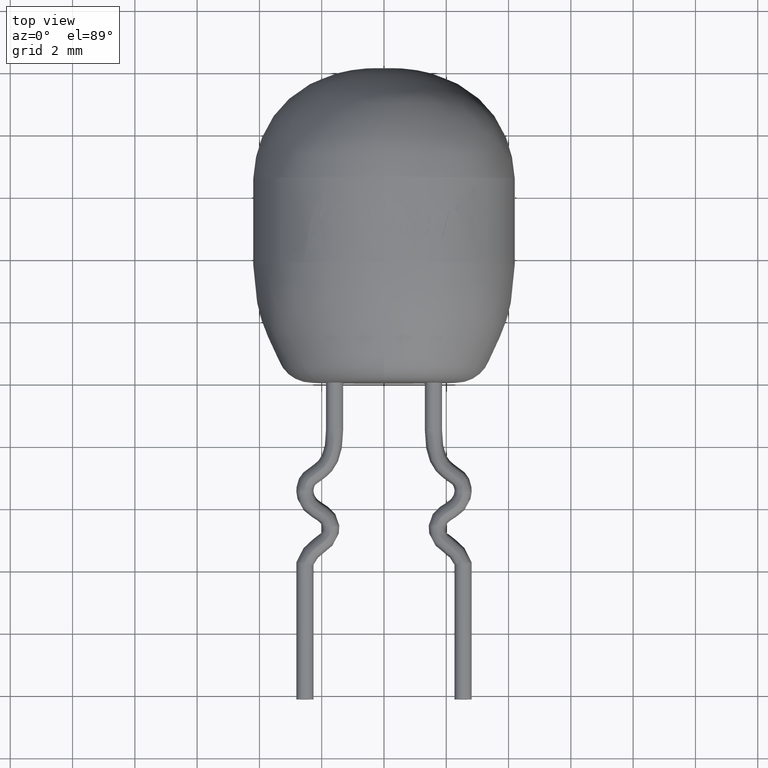
[diagram: clean part render]
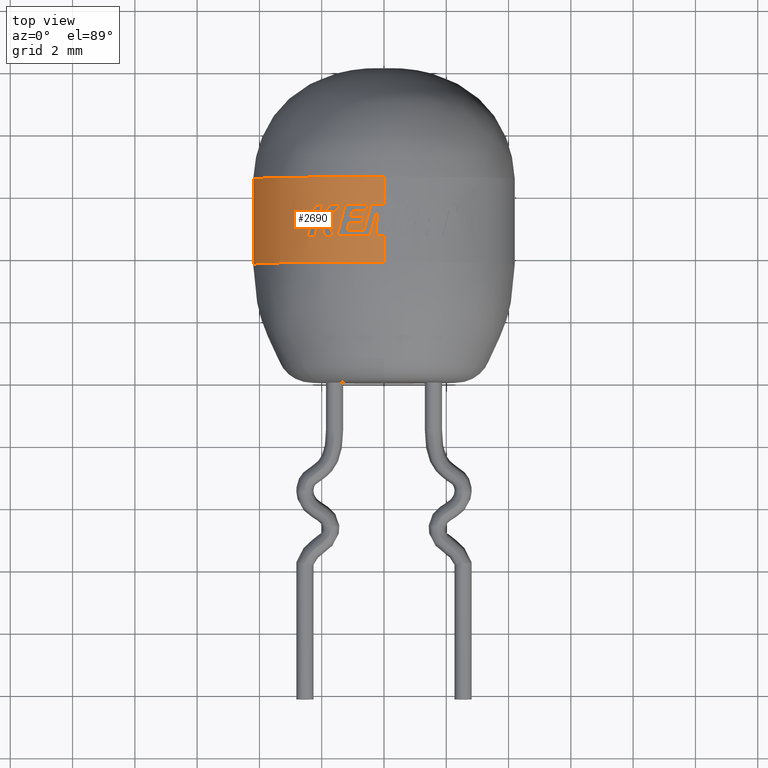
[diagram: same view with one face highlighted and labeled with its STEP entity id]
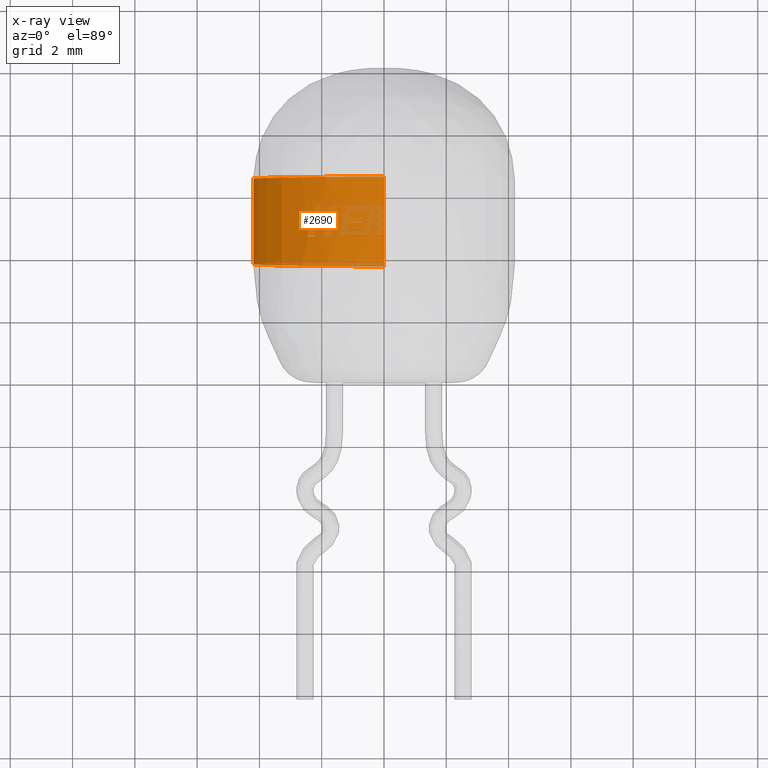
[diagram: x-ray of the same camera — body ghosted, the highlighted face saturated]
A machine part, top view. The second image highlights one B-rep face of the part: STEP entity #2690.
The next image is the same camera in x-ray: the body ghosted, the highlighted face saturated — about 17% of this face is hidden behind the body in this view.
In plain terms, the highlighted cylindrical surface (partial cylindrical patch) has radius 4.2 mm, axis along (-0, -1, -0).
Its self-contained STEP definition (entity closure, byte-faithful):
#1 = VERTEX_POINT ( 'NONE', #2329 ) ;
#3 = CIRCLE ( 'NONE', #3885, 4.200000000000000200 ) ;
#43 = VERTEX_POINT ( 'NONE', #5034 ) ;
#71 = ORIENTED_EDGE ( 'NONE', *, *, #4346, .T. ) ;
#88 = DIRECTION ( 'NONE',  ( -0.0000000000000000000, -1.000000000000000000, -0.0000000000000000000 ) ) ;
#95 = DIRECTION ( 'NONE',  ( -0.2542979737278155400, 0.0000000000000000000, 0.9671259176332353000 ) ) ;
#112 = CARTESIAN_POINT ( 'NONE',  ( -1.754878093605808600, 5.003048467462742900, 3.816558976921661900 ) ) ;
#127 = ORIENTED_EDGE ( 'NONE', *, *, #3571, .F. ) ;
#135 = B_SPLINE_CURVE_WITH_KNOTS ( 'NONE', 3,
 ( #4762, #1668, #768, #3006 ),
 .UNSPECIFIED., .F., .F.,
 ( 4, 4 ),
 ( 0.0000000000000000000, 1.000000000000000000 ),
 .UNSPECIFIED. ) ;
#147 = CARTESIAN_POINT ( 'NONE',  ( -0.2026056292762357700, 5.535606561229161400, 4.195110363147265700 ) ) ;
#154 = CARTESIAN_POINT ( 'NONE',  ( 0.0000000000000000000, 3.803860493999999800, -4.200000000000000200 ) ) ;
#190 = CARTESIAN_POINT ( 'NONE',  ( -0.6373349285369702700, 4.638143343826302900, 4.151361727056169600 ) ) ;
#205 = CARTESIAN_POINT ( 'NONE',  ( -2.043656353274370100, 5.359630677043721600, 3.669489866398929900 ) ) ;
#215 = ORIENTED_EDGE ( 'NONE', *, *, #3795, .F. ) ;
#233 = VERTEX_POINT ( 'NONE', #4449 ) ;
#293 = ORIENTED_EDGE ( 'NONE', *, *, #4642, .F. ) ;
#316 = DIRECTION ( 'NONE',  ( -0.0000000000000000000, -1.000000000000000000, -0.0000000000000000000 ) ) ;
#331 = B_SPLINE_CURVE_WITH_KNOTS ( 'NONE', 3,
 ( #5420, #644, #2857, #147 ),
 .UNSPECIFIED., .F., .F.,
 ( 4, 4 ),
 ( 0.0000000000000000000, 1.000000000000000000 ),
 .UNSPECIFIED. ) ;
#335 = ORIENTED_EDGE ( 'NONE', *, *, #5180, .F. ) ;
#365 = EDGE_LOOP ( 'NONE', ( #2602, #293, #371, #5595, #2349, #2572, #4389, #2562, #5455, #4678, #3379 ) ) ;
#367 = CARTESIAN_POINT ( 'NONE',  ( -2.133381453791007900, 5.003048473628087600, 3.618206504041455500 ) ) ;
#371 = ORIENTED_EDGE ( 'NONE', *, *, #2056, .T. ) ;
#378 = AXIS2_PLACEMENT_3D ( 'NONE', #5670, #2162, #5687 ) ;
#385 = DIRECTION ( 'NONE',  ( -0.4510963353800685500, 0.0000000000000000000, 0.8924752636385351300 ) ) ;
#402 = CARTESIAN_POINT ( 'NONE',  ( -2.302025774724080000, 5.310193731848106500, 3.514257059445960800 ) ) ;
#413 = VERTEX_POINT ( 'NONE', #4680 ) ;
#415 = AXIS2_PLACEMENT_3D ( 'NONE', #5208, #5721, #3463 ) ;
#431 = DIRECTION ( 'NONE',  ( -0.0000000000000000000, -1.000000000000000000, -0.0000000000000000000 ) ) ;
#441 = CARTESIAN_POINT ( 'NONE',  ( -1.188025340779879100, 4.829930339892737100, 4.028473133789631800 ) ) ;
#514 = EDGE_CURVE ( 'NONE', #2338, #5542, #723, .T. ) ;
#521 = CARTESIAN_POINT ( 'NONE',  ( -0.5102994829641494000, 5.646218952581399700, 4.168884075827310900 ) ) ;
#536 = CIRCLE ( 'NONE', #415, 4.200000000000001100 ) ;
#558 = B_SPLINE_CURVE_WITH_KNOTS ( 'NONE', 3,
 ( #2640, #2674, #3554, #3972 ),
 .UNSPECIFIED., .F., .F.,
 ( 4, 4 ),
 ( 0.0000000000000000000, 1.000000000000000000 ),
 .UNSPECIFIED. ) ;
#579 = DIRECTION ( 'NONE',  ( -0.0000000000000000000, -1.000000000000000000, -0.0000000000000000000 ) ) ;
#644 = CARTESIAN_POINT ( 'NONE',  ( -0.3740703957898319200, 4.937297759540953700, 4.184190418391093400 ) ) ;
#650 = VERTEX_POINT ( 'NONE', #5662 ) ;
#681 = CARTESIAN_POINT ( 'NONE',  ( -1.827579657790420900, 5.502924579147035400, 3.784223398404107400 ) ) ;
#716 = EDGE_CURVE ( 'NONE', #4029, #3697, #4999, .T. ) ;
#719 = VERTEX_POINT ( 'NONE', #3482 ) ;
#721 = DIRECTION ( 'NONE',  ( -0.2665202209951475500, 0.0000000000000000000, 0.9638293271117546200 ) ) ;
#723 = B_SPLINE_CURVE_WITH_KNOTS ( 'NONE', 3,
 ( #1950, #4496, #2803, #1051 ),
 .UNSPECIFIED., .F., .F.,
 ( 4, 4 ),
 ( 0.0000000000000000000, 1.000000000000000000 ),
 .UNSPECIFIED. ) ;
#738 = CARTESIAN_POINT ( 'NONE',  ( -0.2026056292762357700, 5.535606561229161400, 4.195110363147265700 ) ) ;
#739 = CARTESIAN_POINT ( 'NONE',  ( -1.696946932100555700, 5.646218952581399700, 3.841922840145871800 ) ) ;
#762 = CARTESIAN_POINT ( 'NONE',  ( 5.143516556418883900E-016, 10.08714000000000000, 4.200000000000000200 ) ) ;
#768 = CARTESIAN_POINT ( 'NONE',  ( -0.5658175154234239600, 5.102026550333007100, 4.162447289377482200 ) ) ;
#774 = ORIENTED_EDGE ( 'NONE', *, *, #4677, .F. ) ;
#799 = DIRECTION ( 'NONE',  ( -0.0000000000000000000, -1.000000000000000000, -0.0000000000000000000 ) ) ;
#802 = DIRECTION ( 'NONE',  ( -0.0000000000000000000, -1.000000000000000000, -0.0000000000000000000 ) ) ;
#815 = EDGE_CURVE ( 'NONE', #5439, #5587, #3541, .T. ) ;
#829 = ORIENTED_EDGE ( 'NONE', *, *, #4030, .F. ) ;
#839 = VERTEX_POINT ( 'NONE', #4282 ) ;
#846 = CIRCLE ( 'NONE', #2995, 4.200000000000000200 ) ;
#863 = DIRECTION ( 'NONE',  ( -0.0000000000000000000, -1.000000000000000000, -0.0000000000000000000 ) ) ;
#872 = DIRECTION ( 'NONE',  ( -0.0000000000000000000, -1.000000000000000000, -0.0000000000000000000 ) ) ;
#907 = DIRECTION ( 'NONE',  ( -0.0000000000000000000, -1.000000000000000000, -0.0000000000000000000 ) ) ;
#920 = EDGE_CURVE ( 'NONE', #3786, #719, #2659, .T. ) ;
#953 = CARTESIAN_POINT ( 'NONE',  ( 5.143516556418883900E-016, 6.541510289999998800, 4.200000000000000200 ) ) ;
#962 = DIRECTION ( 'NONE',  ( -0.0000000000000000000, -1.000000000000000000, -0.0000000000000000000 ) ) ;
#974 = CARTESIAN_POINT ( 'NONE',  ( -1.237645723650705500, 5.646218952581399700, 4.013506330221633600 ) ) ;
#986 = CIRCLE ( 'NONE', #2146, 4.200000000000001100 ) ;
#999 = CARTESIAN_POINT ( 'NONE',  ( 0.0000000000000000000, 5.454336936588942900, 0.0000000000000000000 ) ) ;
#1023 = CARTESIAN_POINT ( 'NONE',  ( -1.823010230587591300, 5.185501039771435400, 3.783732773224476100 ) ) ;
#1043 = VERTEX_POINT ( 'NONE', #5533 ) ;
#1051 = CARTESIAN_POINT ( 'NONE',  ( -1.894604608596286700, 4.638143343826302900, 3.748396107281848400 ) ) ;
#1063 = CARTESIAN_POINT ( 'NONE',  ( -1.188025340779879100, 4.829930339892737100, 4.028473133789631800 ) ) ;
#1069 = VECTOR ( 'NONE', #2599, 1000.000000000000000 ) ;
#1078 = DIRECTION ( 'NONE',  ( -0.0000000000000000000, -1.000000000000000000, -0.0000000000000000000 ) ) ;
#1135 = CARTESIAN_POINT ( 'NONE',  ( -4.200000000000000200, 3.803860493999999800, 5.143516556418883900E-016 ) ) ;
#1175 = DIRECTION ( 'NONE',  ( -0.3599232138933414800, 0.0000000000000000000, 0.9329819291394061400 ) ) ;
#1195 = CARTESIAN_POINT ( 'NONE',  ( 5.143516556418883900E-016, 5.646218952581399700, 4.200000000000000200 ) ) ;
#1219 = B_SPLINE_CURVE_WITH_KNOTS ( 'NONE', 3,
 ( #2003, #205, #4633, #5000 ),
 .UNSPECIFIED., .F., .F.,
 ( 4, 4 ),
 ( 0.0000000000000000000, 1.000000000000000000 ),
 .UNSPECIFIED. ) ;
#1253 = ORIENTED_EDGE ( 'NONE', *, *, #5654, .F. ) ;
#1254 = DIRECTION ( 'NONE',  ( -0.09770434247032663800, 0.0000000000000000000, 0.9952154849390362200 ) ) ;
#1301 = EDGE_CURVE ( 'NONE', #5439, #650, #5169, .T. ) ;
#1403 = CARTESIAN_POINT ( 'NONE',  ( 0.0000000000000000000, 5.646218952581399700, 0.0000000000000000000 ) ) ;
#1415 = DIRECTION ( 'NONE',  ( -0.0000000000000000000, -1.000000000000000000, -0.0000000000000000000 ) ) ;
#1442 = CARTESIAN_POINT ( 'NONE',  ( -0.5643497764423857100, 5.454336936588942900, 4.161911739793317200 ) ) ;
#1443 = EDGE_CURVE ( 'NONE', #3510, #5381, #135, .T. ) ;
#1487 = CARTESIAN_POINT ( 'NONE',  ( -0.6797233804872550000, 5.142595966387672100, 4.144670185500836500 ) ) ;
#1524 = VERTEX_POINT ( 'NONE', #4684 ) ;
#1559 = VERTEX_POINT ( 'NONE', #3084 ) ;
#1574 = EDGE_CURVE ( 'NONE', #3590, #1893, #2597, .T. ) ;
#1630 = CARTESIAN_POINT ( 'NONE',  ( 5.143516556418883900E-016, 4.638143343826302900, 4.200000000000000200 ) ) ;
#1633 = CIRCLE ( 'NONE', #4508, 4.200000000000001100 ) ;
#1668 = CARTESIAN_POINT ( 'NONE',  ( -0.4881946363773116400, 5.374122742141128000, 4.172263521713162500 ) ) ;
#1711 = CIRCLE ( 'NONE', #4003, 4.200000000000001100 ) ;
#1775 = DIRECTION ( 'NONE',  ( -0.06019921869255844000, 0.0000000000000000000, 0.9981863824300578600 ) ) ;
#1805 = CIRCLE ( 'NONE', #378, 4.200000000000000200 ) ;
#1863 = DIRECTION ( 'NONE',  ( -0.0000000000000000000, -1.000000000000000000, -0.0000000000000000000 ) ) ;
#1874 = CARTESIAN_POINT ( 'NONE',  ( -0.5283310733158416200, 5.582258280579761600, 4.166676887748648600 ) ) ;
#1875 = VERTEX_POINT ( 'NONE', #1023 ) ;
#1893 = VERTEX_POINT ( 'NONE', #3711 ) ;
#1931 = CARTESIAN_POINT ( 'NONE',  ( -1.421463247651702400, 4.974168564696634900, 3.953326708992253900 ) ) ;
#1932 = EDGE_CURVE ( 'NONE', #4901, #2504, #4998, .T. ) ;
#1941 = ORIENTED_EDGE ( 'NONE', *, *, #1574, .T. ) ;
#1950 = CARTESIAN_POINT ( 'NONE',  ( -2.088007049265861800, 5.185501039771423800, 3.644204517067623600 ) ) ;
#1979 = CIRCLE ( 'NONE', #2675, 4.200000000000000200 ) ;
#2003 = CARTESIAN_POINT ( 'NONE',  ( -2.079344364160021600, 5.216336538903381600, 3.649154287672139700 ) ) ;
#2012 = AXIS2_PLACEMENT_3D ( 'NONE', #999, #579, #2336 ) ;
#2056 = EDGE_CURVE ( 'NONE', #1524, #719, #1711, .T. ) ;
#2068 = DIRECTION ( 'NONE',  ( 0.0000000000000000000, 0.0000000000000000000, -1.000000000000000000 ) ) ;
#2079 = ORIENTED_EDGE ( 'NONE', *, *, #1443, .F. ) ;
#2082 = CARTESIAN_POINT ( 'NONE',  ( -2.079344364160021600, 5.216336538903381600, 3.649154287672139700 ) ) ;
#2104 = CIRCLE ( 'NONE', #2292, 4.200000000000001100 ) ;
#2107 = B_SPLINE_CURVE_WITH_KNOTS ( 'NONE', 3,
 ( #974, #2763, #1931, #5384 ),
 .UNSPECIFIED., .F., .F.,
 ( 4, 4 ),
 ( 0.0000000000000000000, 1.000000000000000000 ),
 .UNSPECIFIED. ) ;
#2109 = VERTEX_POINT ( 'NONE', #154 ) ;
#2115 = ORIENTED_EDGE ( 'NONE', *, *, #815, .T. ) ;
#2146 = AXIS2_PLACEMENT_3D ( 'NONE', #3815, #4747, #1254 ) ;
#2162 = DIRECTION ( 'NONE',  ( -0.0000000000000000000, -1.000000000000000000, -0.0000000000000000000 ) ) ;
#2170 = ORIENTED_EDGE ( 'NONE', *, *, #4020, .F. ) ;
#2178 = CARTESIAN_POINT ( 'NONE',  ( 5.143516556418883900E-016, 10.08714000000000000, 4.200000000000000200 ) ) ;
#2227 = VERTEX_POINT ( 'NONE', #953 ) ;
#2237 = CIRCLE ( 'NONE', #3977, 4.200000000000001100 ) ;
#2260 = CARTESIAN_POINT ( 'NONE',  ( -1.142320066970550000, 4.996961068749002700, 4.041741098475761800 ) ) ;
#2284 = CARTESIAN_POINT ( 'NONE',  ( -1.165201306176189900, 4.913445704344991500, 4.035204103709868500 ) ) ;
#2292 = AXIS2_PLACEMENT_3D ( 'NONE', #4397, #962, #3586 ) ;
#2294 = EDGE_CURVE ( 'NONE', #233, #2405, #331, .T. ) ;
#2306 = VERTEX_POINT ( 'NONE', #5502 ) ;
#2312 = CARTESIAN_POINT ( 'NONE',  ( -1.388506870524897100, 5.646218952581399700, 3.963842664701156400 ) ) ;
#2328 = CARTESIAN_POINT ( 'NONE',  ( -0.5643497764423857100, 5.454336936588942900, 4.161911739793317200 ) ) ;
#2329 = CARTESIAN_POINT ( 'NONE',  ( -4.200000000000000200, 6.541510289999998800, 5.143516556418881000E-016 ) ) ;
#2335 = B_SPLINE_CURVE_WITH_KNOTS ( 'NONE', 3,
 ( #2328, #3616, #1874, #521 ),
 .UNSPECIFIED., .F., .F.,
 ( 4, 4 ),
 ( 0.0000000000000000000, 1.000000000000000000 ),
 .UNSPECIFIED. ) ;
#2336 = DIRECTION ( 'NONE',  ( -0.2417134838641810700, 0.0000000000000000000, 0.9703476653850620100 ) ) ;
#2338 = VERTEX_POINT ( 'NONE', #5029 ) ;
#2341 = ORIENTED_EDGE ( 'NONE', *, *, #1301, .F. ) ;
#2349 = ORIENTED_EDGE ( 'NONE', *, *, #3130, .F. ) ;
#2405 = VERTEX_POINT ( 'NONE', #4986 ) ;
#2426 = CARTESIAN_POINT ( 'NONE',  ( -0.6446748003385809300, 5.266835032749344900, 4.150228234905691600 ) ) ;
#2445 = EDGE_CURVE ( 'NONE', #3697, #3909, #4065, .T. ) ;
#2454 = CARTESIAN_POINT ( 'NONE',  ( 0.0000000000000000000, 10.08714000000000000, 0.0000000000000000000 ) ) ;
#2500 = CARTESIAN_POINT ( 'NONE',  ( -1.955266137996746600, 5.359630912337745000, 3.719855973583086100 ) ) ;
#2504 = VERTEX_POINT ( 'NONE', #1135 ) ;
#2521 = DIRECTION ( 'NONE',  ( 0.0000000000000000000, 0.0000000000000000000, -1.000000000000000000 ) ) ;
#2546 = CARTESIAN_POINT ( 'NONE',  ( -2.088007049265861800, 5.185501039771423800, 3.644204517067623600 ) ) ;
#2560 = DIRECTION ( 'NONE',  ( -0.0000000000000000000, -1.000000000000000000, -0.0000000000000000000 ) ) ;
#2562 = ORIENTED_EDGE ( 'NONE', *, *, #716, .F. ) ;
#2565 = VERTEX_POINT ( 'NONE', #1195 ) ;
#2567 = AXIS2_PLACEMENT_3D ( 'NONE', #5658, #802, #2521 ) ;
#2572 = ORIENTED_EDGE ( 'NONE', *, *, #2879, .F. ) ;
#2576 = CARTESIAN_POINT ( 'NONE',  ( -2.222642110024108900, 4.638143343826302900, 3.563686581441692700 ) ) ;
#2579 = B_SPLINE_CURVE_WITH_KNOTS ( 'NONE', 3,
 ( #3220, #4057, #4015, #2312 ),
 .UNSPECIFIED., .F., .F.,
 ( 4, 4 ),
 ( 0.0000000000000000000, 1.000000000000000000 ),
 .UNSPECIFIED. ) ;
#2585 = CARTESIAN_POINT ( 'NONE',  ( 0.0000000000000000000, 4.638143343826302900, 0.0000000000000000000 ) ) ;
#2597 = CIRCLE ( 'NONE', #3472, 4.200000000000000200 ) ;
#2599 = DIRECTION ( 'NONE',  ( -0.0000000000000000000, -1.000000000000000000, -0.0000000000000000000 ) ) ;
#2602 = ORIENTED_EDGE ( 'NONE', *, *, #514, .F. ) ;
#2640 = CARTESIAN_POINT ( 'NONE',  ( -1.068051489656824500, 5.266835032749344900, 4.061928854059589300 ) ) ;
#2659 = B_SPLINE_CURVE_WITH_KNOTS ( 'NONE', 3,
 ( #4824, #402, #5693, #3076 ),
 .UNSPECIFIED., .F., .F.,
 ( 4, 4 ),
 ( 0.0000000000000000000, 1.000000000000000000 ),
 .UNSPECIFIED. ) ;
#2674 = CARTESIAN_POINT ( 'NONE',  ( -1.050462747941113500, 5.329335667366810200, 4.066553672087083600 ) ) ;
#2675 = AXIS2_PLACEMENT_3D ( 'NONE', #2935, #316, #2068 ) ;
#2688 = DIRECTION ( 'NONE',  ( 0.0000000000000000000, 0.0000000000000000000, -1.000000000000000000 ) ) ;
#2690 = ADVANCED_FACE ( 'NONE', ( #4420, #4715 ), #5201, .T. ) ;
#2694 = VECTOR ( 'NONE', #1863, 1000.000000000000000 ) ;
#2707 = CIRCLE ( 'NONE', #3819, 4.200000000000000200 ) ;
#2740 = CARTESIAN_POINT ( 'NONE',  ( -1.823010230587591300, 5.185501039771435400, 3.783732773224476100 ) ) ;
#2763 = CARTESIAN_POINT ( 'NONE',  ( -1.330046703407741700, 5.310193731711067700, 3.985012622214671600 ) ) ;
#2769 = CARTESIAN_POINT ( 'NONE',  ( -1.237645723650705500, 5.646218952581399700, 4.013506330221633600 ) ) ;
#2788 = B_SPLINE_CURVE_WITH_KNOTS ( 'NONE', 3,
 ( #2576, #3470, #367, #2546 ),
 .UNSPECIFIED., .F., .F.,
 ( 4, 4 ),
 ( 0.0000000000000000000, 1.000000000000000000 ),
 .UNSPECIFIED. ) ;
#2801 = CARTESIAN_POINT ( 'NONE',  ( -0.6972203761751733000, 5.080476433201253500, 4.141724730960056900 ) ) ;
#2803 = CARTESIAN_POINT ( 'NONE',  ( -1.959965788977368100, 4.820595914962098000, 3.715359685828757200 ) ) ;
#2857 = CARTESIAN_POINT ( 'NONE',  ( -0.2884016033220023200, 5.236452145514508800, 4.190966789842589100 ) ) ;
#2879 = EDGE_CURVE ( 'NONE', #3909, #2306, #1219, .T. ) ;
#2892 = CARTESIAN_POINT ( 'NONE',  ( -1.119384928179620000, 5.080476433201253500, 4.048083173869370600 ) ) ;
#2935 = CARTESIAN_POINT ( 'NONE',  ( 0.0000000000000000000, 6.541510289999998800, 0.0000000000000000000 ) ) ;
#2951 = CARTESIAN_POINT ( 'NONE',  ( 0.0000000000000000000, 5.080476433201253500, 0.0000000000000000000 ) ) ;
#2952 = CARTESIAN_POINT ( 'NONE',  ( -0.2360986671425775200, 4.937297749627847800, 4.193392254574217900 ) ) ;
#2958 = ORIENTED_EDGE ( 'NONE', *, *, #3752, .F. ) ;
#2987 = AXIS2_PLACEMENT_3D ( 'NONE', #4264, #3035, #3876 ) ;
#2995 = AXIS2_PLACEMENT_3D ( 'NONE', #5319, #1415, #2688 ) ;
#3004 = CARTESIAN_POINT ( 'NONE',  ( 0.0000000000000000000, 5.646218952581399700, 0.0000000000000000000 ) ) ;
#3006 = CARTESIAN_POINT ( 'NONE',  ( -0.6431058175049012600, 4.829930339892736200, 4.150471648799851600 ) ) ;
#3015 = B_SPLINE_CURVE_WITH_KNOTS ( 'NONE', 3,
 ( #441, #2284, #2260, #3952 ),
 .UNSPECIFIED., .F., .F.,
 ( 4, 4 ),
 ( 0.0000000000000000000, 1.000000000000000000 ),
 .UNSPECIFIED. ) ;
#3035 = DIRECTION ( 'NONE',  ( -0.0000000000000000000, -1.000000000000000000, -0.0000000000000000000 ) ) ;
#3040 = EDGE_CURVE ( 'NONE', #5619, #1559, #1633, .T. ) ;
#3065 = EDGE_CURVE ( 'NONE', #2227, #1, #1979, .T. ) ;
#3076 = CARTESIAN_POINT ( 'NONE',  ( -2.460500831931689400, 4.638143343826302900, 3.403811930184080100 ) ) ;
#3084 = CARTESIAN_POINT ( 'NONE',  ( -1.511677498352034700, 4.638143343826302900, 3.918524102385506900 ) ) ;
#3096 = EDGE_CURVE ( 'NONE', #3590, #4901, #5336, .T. ) ;
#3130 = EDGE_CURVE ( 'NONE', #2306, #3786, #3190, .T. ) ;
#3170 = ORIENTED_EDGE ( 'NONE', *, *, #3424, .F. ) ;
#3190 = CIRCLE ( 'NONE', #2987, 4.200000000000000200 ) ;
#3220 = CARTESIAN_POINT ( 'NONE',  ( -1.823010230587591300, 5.185501039771435400, 3.783732773224476100 ) ) ;
#3296 = ORIENTED_EDGE ( 'NONE', *, *, #3096, .F. ) ;
#3351 = CARTESIAN_POINT ( 'NONE',  ( 0.0000000000000000000, 4.638143343826302900, 0.0000000000000000000 ) ) ;
#3354 = EDGE_CURVE ( 'NONE', #839, #5542, #2707, .T. ) ;
#3379 = ORIENTED_EDGE ( 'NONE', *, *, #3354, .T. ) ;
#3390 = CIRCLE ( 'NONE', #2012, 4.200000000000001100 ) ;
#3424 = EDGE_CURVE ( 'NONE', #650, #5610, #2237, .T. ) ;
#3432 = ORIENTED_EDGE ( 'NONE', *, *, #3638, .F. ) ;
#3437 = VERTEX_POINT ( 'NONE', #2769 ) ;
#3463 = DIRECTION ( 'NONE',  ( -0.2828631763761619300, 0.0000000000000000000, 0.9591602699499121000 ) ) ;
#3468 = EDGE_CURVE ( 'NONE', #839, #1875, #4897, .T. ) ;
#3470 = CARTESIAN_POINT ( 'NONE',  ( -2.178270243464520500, 4.820595909969640000, 3.591360950907655600 ) ) ;
#3472 = AXIS2_PLACEMENT_3D ( 'NONE', #5707, #431, #1775 ) ;
#3482 = CARTESIAN_POINT ( 'NONE',  ( -2.460500831931689400, 4.638143343826302900, 3.403811930184080100 ) ) ;
#3498 = CARTESIAN_POINT ( 'NONE',  ( -1.388506870524897100, 5.646218952581399700, 3.963842664701156400 ) ) ;
#3510 = VERTEX_POINT ( 'NONE', #4545 ) ;
#3541 = CIRCLE ( 'NONE', #4768, 4.200000000000001100 ) ;
#3554 = CARTESIAN_POINT ( 'NONE',  ( -1.032843966614587900, 5.391836301971477700, 4.071064245796764100 ) ) ;
#3571 = EDGE_CURVE ( 'NONE', #2565, #3510, #986, .T. ) ;
#3586 = DIRECTION ( 'NONE',  ( -0.1517464115564214600, 0.0000000000000000000, 0.9884194588228972800 ) ) ;
#3590 = VERTEX_POINT ( 'NONE', #1630 ) ;
#3616 = CARTESIAN_POINT ( 'NONE',  ( -0.5463483433953518800, 5.518297608590582800, 4.164352710518044500 ) ) ;
#3626 = CARTESIAN_POINT ( 'NONE',  ( -0.6431058175049012600, 4.829930339892736200, 4.150471648799851600 ) ) ;
#3638 = EDGE_CURVE ( 'NONE', #413, #3437, #3, .T. ) ;
#3678 = CARTESIAN_POINT ( 'NONE',  ( -1.685859126566258400, 4.820595916134995400, 3.847544483578082100 ) ) ;
#3697 = VERTEX_POINT ( 'NONE', #3999 ) ;
#3711 = CARTESIAN_POINT ( 'NONE',  ( -0.2528367185087454500, 4.638143343826302900, 4.192382806206243400 ) ) ;
#3752 = EDGE_CURVE ( 'NONE', #3869, #413, #2335, .T. ) ;
#3782 = ORIENTED_EDGE ( 'NONE', *, *, #3065, .T. ) ;
#3786 = VERTEX_POINT ( 'NONE', #4971 ) ;
#3788 = EDGE_CURVE ( 'NONE', #1875, #4029, #2579, .T. ) ;
#3790 = DIRECTION ( 'NONE',  ( -0.0000000000000000000, -1.000000000000000000, -0.0000000000000000000 ) ) ;
#3795 = EDGE_CURVE ( 'NONE', #3437, #1559, #2107, .T. ) ;
#3815 = CARTESIAN_POINT ( 'NONE',  ( 0.0000000000000000000, 5.646218952581399700, 0.0000000000000000000 ) ) ;
#3819 = AXIS2_PLACEMENT_3D ( 'NONE', #4805, #872, #385 ) ;
#3822 = CARTESIAN_POINT ( 'NONE',  ( -0.2528367185087454500, 4.638143343826302900, 4.192382806206243400 ) ) ;
#3869 = VERTEX_POINT ( 'NONE', #1442 ) ;
#3876 = DIRECTION ( 'NONE',  ( -0.5285836066474450800, 0.0000000000000000000, 0.8488812465731464500 ) ) ;
#3885 = AXIS2_PLACEMENT_3D ( 'NONE', #1403, #88, #5361 ) ;
#3909 = VERTEX_POINT ( 'NONE', #5032 ) ;
#3952 = CARTESIAN_POINT ( 'NONE',  ( -1.119384928179620000, 5.080476433201253500, 4.048083173869370600 ) ) ;
#3972 = CARTESIAN_POINT ( 'NONE',  ( -1.015196632229560700, 5.454336936588942900, 4.075460194617261500 ) ) ;
#3977 = AXIS2_PLACEMENT_3D ( 'NONE', #4110, #1078, #95 ) ;
#3999 = CARTESIAN_POINT ( 'NONE',  ( -1.696946932100555700, 5.646218952581399700, 3.841922840145871800 ) ) ;
#4003 = AXIS2_PLACEMENT_3D ( 'NONE', #2585, #907, #5700 ) ;
#4015 = CARTESIAN_POINT ( 'NONE',  ( -1.536553606100778100, 5.492645939125143400, 3.911982909687043100 ) ) ;
#4020 = EDGE_CURVE ( 'NONE', #2504, #2109, #846, .T. ) ;
#4029 = VERTEX_POINT ( 'NONE', #3498 ) ;
#4030 = EDGE_CURVE ( 'NONE', #4318, #5587, #3015, .T. ) ;
#4043 = CARTESIAN_POINT ( 'NONE',  ( -1.616053972933390300, 4.638143343826302900, 3.876644110124916900 ) ) ;
#4057 = CARTESIAN_POINT ( 'NONE',  ( -1.681690472778891300, 5.339074053227692600, 3.851820923130969500 ) ) ;
#4065 = B_SPLINE_CURVE_WITH_KNOTS ( 'NONE', 3,
 ( #739, #681, #2500, #2082 ),
 .UNSPECIFIED., .F., .F.,
 ( 4, 4 ),
 ( 0.0000000000000000000, 1.000000000000000000 ),
 .UNSPECIFIED. ) ;
#4066 = EDGE_CURVE ( 'NONE', #233, #5619, #2104, .T. ) ;
#4086 = ORIENTED_EDGE ( 'NONE', *, *, #4066, .T. ) ;
#4110 = CARTESIAN_POINT ( 'NONE',  ( 0.0000000000000000000, 5.266835032749344900, 0.0000000000000000000 ) ) ;
#4179 = EDGE_CURVE ( 'NONE', #1043, #2109, #5536, .T. ) ;
#4196 = EDGE_LOOP ( 'NONE', ( #774, #3782, #4315, #4456, #2170, #4605, #3296, #1941, #1253, #4935, #4086, #5736, #215, #3432, #2958, #71, #4274, #3170, #2341, #2115, #829, #335, #2079, #127 ) ) ;
#4264 = CARTESIAN_POINT ( 'NONE',  ( 0.0000000000000000000, 5.646218952581399700, 0.0000000000000000000 ) ) ;
#4271 = EDGE_CURVE ( 'NONE', #5610, #43, #558, .T. ) ;
#4274 = ORIENTED_EDGE ( 'NONE', *, *, #4271, .F. ) ;
#4282 = CARTESIAN_POINT ( 'NONE',  ( -1.616053972933390300, 4.638143343826302900, 3.876644110124916900 ) ) ;
#4315 = ORIENTED_EDGE ( 'NONE', *, *, #4650, .T. ) ;
#4318 = VERTEX_POINT ( 'NONE', #1063 ) ;
#4346 = EDGE_CURVE ( 'NONE', #3869, #43, #3390, .T. ) ;
#4389 = ORIENTED_EDGE ( 'NONE', *, *, #2445, .F. ) ;
#4397 = CARTESIAN_POINT ( 'NONE',  ( 0.0000000000000000000, 4.638143343826302900, 0.0000000000000000000 ) ) ;
#4420 = FACE_OUTER_BOUND ( 'NONE', #4196, .T. ) ;
#4449 = CARTESIAN_POINT ( 'NONE',  ( -0.4594508711998642700, 4.638143343826302900, 4.174793994552747900 ) ) ;
#4456 = ORIENTED_EDGE ( 'NONE', *, *, #4179, .T. ) ;
#4496 = CARTESIAN_POINT ( 'NONE',  ( -2.024462668691223500, 5.003048468635626900, 3.680613317385955400 ) ) ;
#4508 = AXIS2_PLACEMENT_3D ( 'NONE', #3351, #3790, #1175 ) ;
#4545 = CARTESIAN_POINT ( 'NONE',  ( -0.4103582383753711600, 5.646218952581399700, 4.179905036743953400 ) ) ;
#4605 = ORIENTED_EDGE ( 'NONE', *, *, #1932, .F. ) ;
#4633 = CARTESIAN_POINT ( 'NONE',  ( -2.007670004681319000, 5.502924814441056100, 3.689301874635097600 ) ) ;
#4642 = EDGE_CURVE ( 'NONE', #1524, #2338, #2788, .T. ) ;
#4650 = EDGE_CURVE ( 'NONE', #1, #1043, #1805, .T. ) ;
#4677 = EDGE_CURVE ( 'NONE', #2227, #2565, #5737, .T. ) ;
#4678 = ORIENTED_EDGE ( 'NONE', *, *, #3468, .F. ) ;
#4680 = CARTESIAN_POINT ( 'NONE',  ( -0.5102994829641494000, 5.646218952581399700, 4.168884075827310900 ) ) ;
#4684 = CARTESIAN_POINT ( 'NONE',  ( -2.222642110024108900, 4.638143343826302900, 3.563686581441692700 ) ) ;
#4715 = FACE_BOUND ( 'NONE', #365, .T. ) ;
#4747 = DIRECTION ( 'NONE',  ( -0.0000000000000000000, -1.000000000000000000, -0.0000000000000000000 ) ) ;
#4762 = CARTESIAN_POINT ( 'NONE',  ( -0.4103582383753711600, 5.646218952581399700, 4.179905036743953400 ) ) ;
#4768 = AXIS2_PLACEMENT_3D ( 'NONE', #2951, #799, #721 ) ;
#4805 = CARTESIAN_POINT ( 'NONE',  ( 0.0000000000000000000, 4.638143343826302900, 0.0000000000000000000 ) ) ;
#4813 = DIRECTION ( 'NONE',  ( -0.4040349838334655300, 0.0000000000000000000, 0.9147435333680644700 ) ) ;
#4824 = CARTESIAN_POINT ( 'NONE',  ( -2.220051147919269500, 5.646218952581399700, 3.565301235607215300 ) ) ;
#4897 = B_SPLINE_CURVE_WITH_KNOTS ( 'NONE', 3,
 ( #4043, #3678, #112, #2740 ),
 .UNSPECIFIED., .F., .F.,
 ( 4, 4 ),
 ( 0.0000000000000000000, 1.000000000000000000 ),
 .UNSPECIFIED. ) ;
#4901 = VERTEX_POINT ( 'NONE', #4925 ) ;
#4919 = DIRECTION ( 'NONE',  ( -0.0000000000000000000, -1.000000000000000000, -0.0000000000000000000 ) ) ;
#4925 = CARTESIAN_POINT ( 'NONE',  ( 5.143516556418883900E-016, 3.803860493999999800, 4.200000000000000200 ) ) ;
#4934 = DIRECTION ( 'NONE',  ( 0.0000000000000000000, 0.0000000000000000000, -1.000000000000000000 ) ) ;
#4935 = ORIENTED_EDGE ( 'NONE', *, *, #2294, .F. ) ;
#4971 = CARTESIAN_POINT ( 'NONE',  ( -2.220051147919269500, 5.646218952581399700, 3.565301235607215300 ) ) ;
#4986 = CARTESIAN_POINT ( 'NONE',  ( -0.2026056292762357700, 5.535606561229161400, 4.195110363147265700 ) ) ;
#4998 = CIRCLE ( 'NONE', #2567, 4.200000000000000200 ) ;
#4999 = CIRCLE ( 'NONE', #5675, 4.200000000000001100 ) ;
#5000 = CARTESIAN_POINT ( 'NONE',  ( -1.971400804549862300, 5.646218952581399700, 3.708581786589067800 ) ) ;
#5029 = CARTESIAN_POINT ( 'NONE',  ( -2.088007049265861800, 5.185501039771423800, 3.644204517067623600 ) ) ;
#5032 = CARTESIAN_POINT ( 'NONE',  ( -2.079344364160021600, 5.216336538903381600, 3.649154287672139700 ) ) ;
#5034 = CARTESIAN_POINT ( 'NONE',  ( -1.015196632229560700, 5.454336936588942900, 4.075460194617261500 ) ) ;
#5169 = B_SPLINE_CURVE_WITH_KNOTS ( 'NONE', 3,
 ( #2801, #1487, #5466, #2426 ),
 .UNSPECIFIED., .F., .F.,
 ( 4, 4 ),
 ( 0.0000000000000000000, 1.000000000000000000 ),
 .UNSPECIFIED. ) ;
#5180 = EDGE_CURVE ( 'NONE', #5381, #4318, #536, .T. ) ;
#5182 = VECTOR ( 'NONE', #2560, 1000.000000000000000 ) ;
#5201 = CYLINDRICAL_SURFACE ( 'NONE', #5229, 4.200000000000000200 ) ;
#5208 = CARTESIAN_POINT ( 'NONE',  ( 0.0000000000000000000, 4.829930339892736200, 0.0000000000000000000 ) ) ;
#5229 = AXIS2_PLACEMENT_3D ( 'NONE', #2454, #4919, #4934 ) ;
#5319 = CARTESIAN_POINT ( 'NONE',  ( 0.0000000000000000000, 3.803860493999999800, 0.0000000000000000000 ) ) ;
#5336 = LINE ( 'NONE', #762, #1069 ) ;
#5352 = CARTESIAN_POINT ( 'NONE',  ( 0.0000000000000000000, 10.08714000000000000, -4.200000000000000200 ) ) ;
#5361 = DIRECTION ( 'NONE',  ( -0.2946775532501681400, 0.0000000000000000000, 0.9555967452908651300 ) ) ;
#5381 = VERTEX_POINT ( 'NONE', #3626 ) ;
#5384 = CARTESIAN_POINT ( 'NONE',  ( -1.511677498352034700, 4.638143343826302900, 3.918524102385506900 ) ) ;
#5420 = CARTESIAN_POINT ( 'NONE',  ( -0.4594508711998642700, 4.638143343826302900, 4.174793994552747900 ) ) ;
#5439 = VERTEX_POINT ( 'NONE', #5540 ) ;
#5455 = ORIENTED_EDGE ( 'NONE', *, *, #3788, .F. ) ;
#5466 = CARTESIAN_POINT ( 'NONE',  ( -0.6622077196528947100, 5.204715499562928100, 4.147504762696804000 ) ) ;
#5478 = B_SPLINE_CURVE_WITH_KNOTS ( 'NONE', 3,
 ( #738, #5579, #2952, #3822 ),
 .UNSPECIFIED., .F., .F.,
 ( 4, 4 ),
 ( 0.0000000000000000000, 1.000000000000000000 ),
 .UNSPECIFIED. ) ;
#5499 = CARTESIAN_POINT ( 'NONE',  ( -1.894604608596286700, 4.638143343826302900, 3.748396107281848400 ) ) ;
#5502 = CARTESIAN_POINT ( 'NONE',  ( -1.971400804549862300, 5.646218952581399700, 3.708581786589067800 ) ) ;
#5520 = CARTESIAN_POINT ( 'NONE',  ( -1.068051489656824500, 5.266835032749344900, 4.061928854059589300 ) ) ;
#5533 = CARTESIAN_POINT ( 'NONE',  ( 0.0000000000000000000, 6.541510289999998800, -4.200000000000000200 ) ) ;
#5536 = LINE ( 'NONE', #5352, #2694 ) ;
#5540 = CARTESIAN_POINT ( 'NONE',  ( -0.6972203761751733000, 5.080476433201253500, 4.141724730960056900 ) ) ;
#5542 = VERTEX_POINT ( 'NONE', #5499 ) ;
#5579 = CARTESIAN_POINT ( 'NONE',  ( -0.2193545703894257100, 5.236452155427617300, 4.194301461959884000 ) ) ;
#5587 = VERTEX_POINT ( 'NONE', #2892 ) ;
#5595 = ORIENTED_EDGE ( 'NONE', *, *, #920, .F. ) ;
#5610 = VERTEX_POINT ( 'NONE', #5520 ) ;
#5619 = VERTEX_POINT ( 'NONE', #190 ) ;
#5654 = EDGE_CURVE ( 'NONE', #2405, #1893, #5478, .T. ) ;
#5658 = CARTESIAN_POINT ( 'NONE',  ( 0.0000000000000000000, 3.803860493999999800, 0.0000000000000000000 ) ) ;
#5662 = CARTESIAN_POINT ( 'NONE',  ( -0.6446748003385809300, 5.266835032749344900, 4.150228234905691600 ) ) ;
#5670 = CARTESIAN_POINT ( 'NONE',  ( 0.0000000000000000000, 6.541510289999998800, 0.0000000000000000000 ) ) ;
#5675 = AXIS2_PLACEMENT_3D ( 'NONE', #3004, #863, #4813 ) ;
#5687 = DIRECTION ( 'NONE',  ( 0.0000000000000000000, 0.0000000000000000000, -1.000000000000000000 ) ) ;
#5693 = CARTESIAN_POINT ( 'NONE',  ( -2.382239222532766700, 4.974168564559595200, 3.460384607812584200 ) ) ;
#5700 = DIRECTION ( 'NONE',  ( -0.5858335314123068700, 0.0000000000000000000, 0.8104314119485902500 ) ) ;
#5707 = CARTESIAN_POINT ( 'NONE',  ( 0.0000000000000000000, 4.638143343826302900, 0.0000000000000000000 ) ) ;
#5721 = DIRECTION ( 'NONE',  ( -0.0000000000000000000, -1.000000000000000000, -0.0000000000000000000 ) ) ;
#5736 = ORIENTED_EDGE ( 'NONE', *, *, #3040, .T. ) ;
#5737 = LINE ( 'NONE', #2178, #5182 ) ;